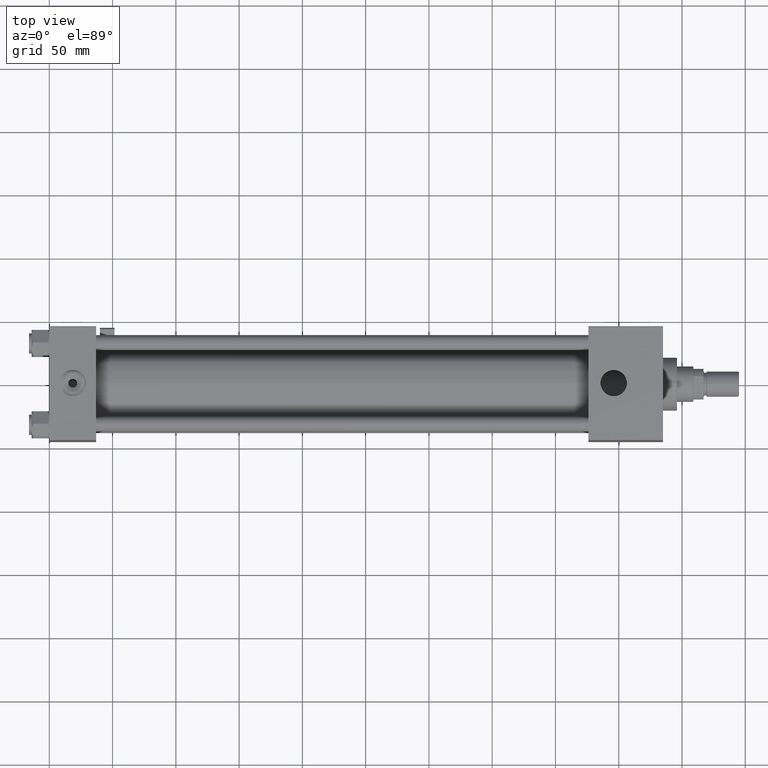
[diagram: clean part render]
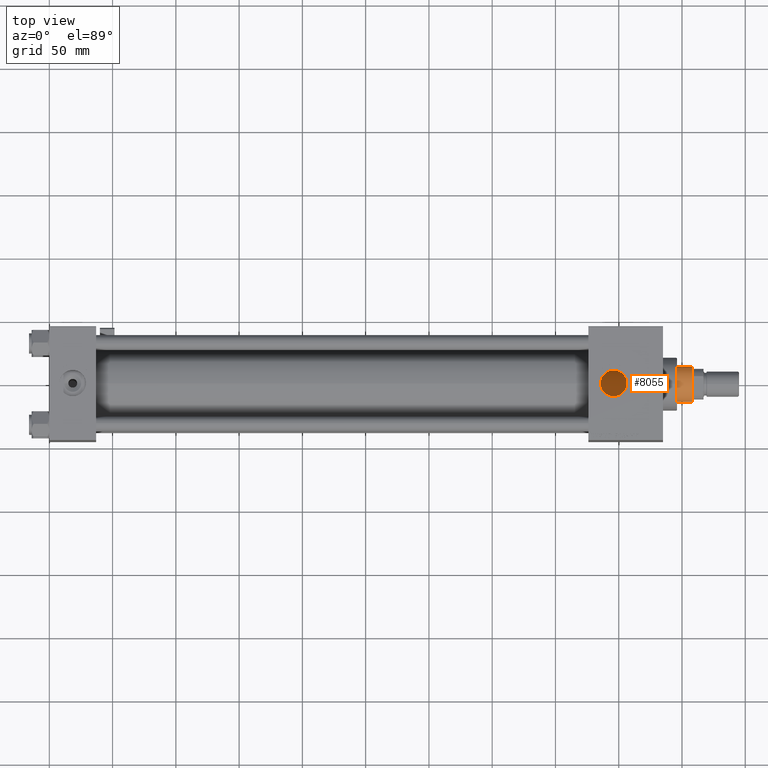
[diagram: same view with one face highlighted and labeled with its STEP entity id]
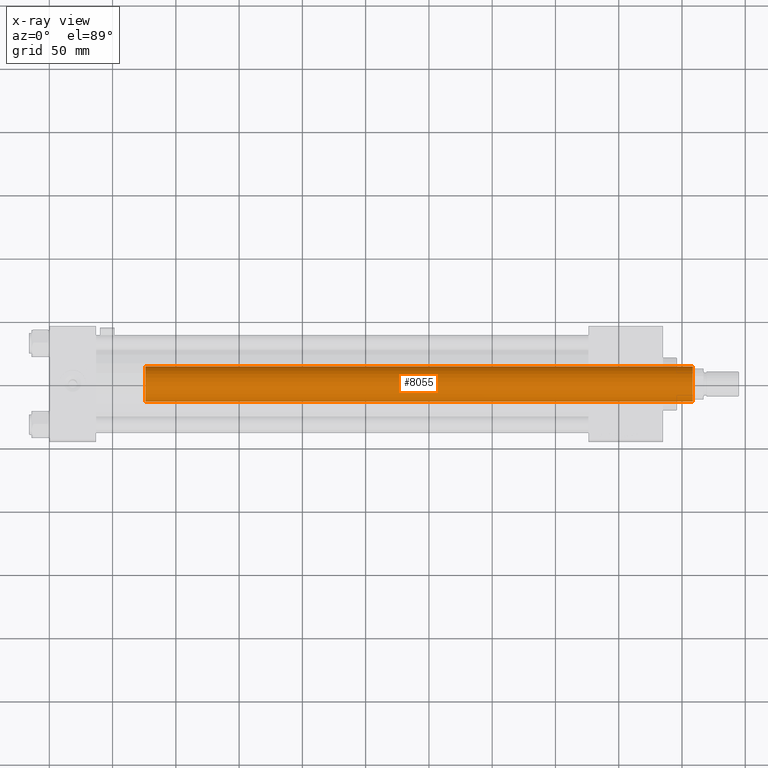
[diagram: x-ray of the same camera — body ghosted, the highlighted face saturated]
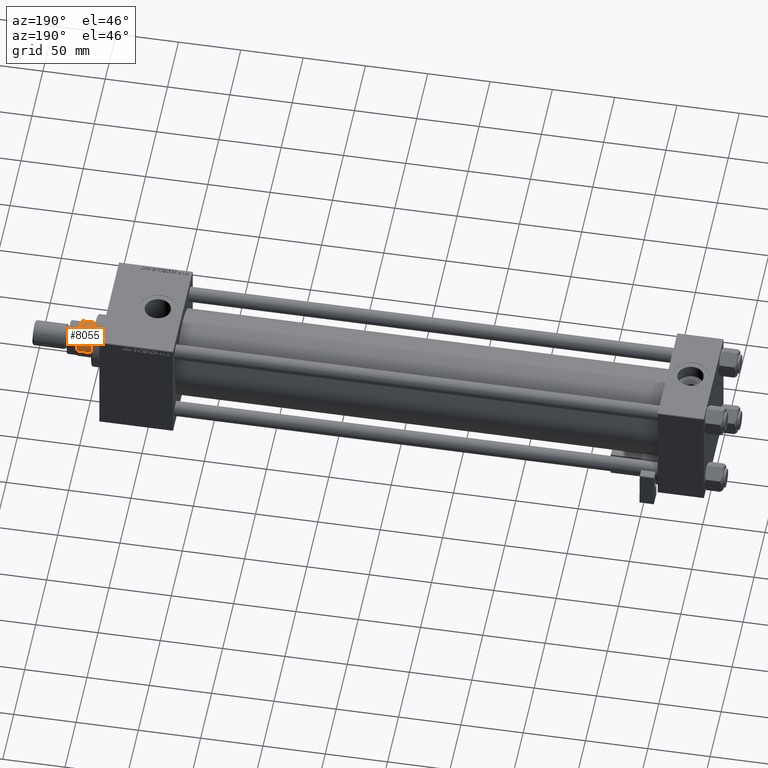
[diagram: same view with one face highlighted and labeled with its STEP entity id]
A machine part, top view. The second image highlights one B-rep face of the part: STEP entity #8055.
The next image is the same camera in x-ray: the body ghosted, the highlighted face saturated — about 0% of this face is hidden behind the body in this view.
A second angle (auxiliary view) of the same face is appended — the face is thin or edge-on in the first view.
In plain terms, the highlighted cylindrical surface (edge-blend (fillet) strip) has radius 14 mm, axis along (-1, 0, 0).
Its self-contained STEP definition (entity closure, byte-faithful):
#2707 = VERTEX_POINT ( 'NONE', #2999 ) ;
#2999 = CARTESIAN_POINT ( 'NONE',  ( 14.00000000000000178, 1.714505518806294441E-15, 471.5000000000001705 ) ) ;
#3241 = VECTOR ( 'NONE', #6051, 1000.000000000000000 ) ;
#3445 = CARTESIAN_POINT ( 'NONE',  ( 0.000000000000000000, 0.000000000000000000, 471.5000000000001705 ) ) ;
#6051 = DIRECTION ( 'NONE',  ( -0.000000000000000000, -0.000000000000000000, -1.000000000000000000 ) ) ;
#7058 = DIRECTION ( 'NONE',  ( 1.000000000000000000, 0.000000000000000000, 0.000000000000000000 ) ) ;
#7446 = DIRECTION ( 'NONE',  ( -1.000000000000000000, 0.000000000000000000, 0.000000000000000000 ) ) ;
#8055 = ADVANCED_FACE ( 'NONE', ( #49395 ), #11335, .T. ) ;
#8339 = DIRECTION ( 'NONE',  ( 1.000000000000000000, 0.000000000000000000, 0.000000000000000000 ) ) ;
#10287 = EDGE_CURVE ( 'NONE', #2707, #46262, #44090, .T. ) ;
#10792 = DIRECTION ( 'NONE',  ( -0.000000000000000000, -0.000000000000000000, -1.000000000000000000 ) ) ;
#11335 = CYLINDRICAL_SURFACE ( 'NONE', #24394, 14.00000000000000178 ) ;
#18667 = ORIENTED_EDGE ( 'NONE', *, *, #52766, .T. ) ;
#19437 = AXIS2_PLACEMENT_3D ( 'NONE', #50553, #28888, #8339 ) ;
#20258 = VERTEX_POINT ( 'NONE', #23067 ) ;
#22705 = CARTESIAN_POINT ( 'NONE',  ( 14.00000000000000178, 1.714505518806294441E-15, 472.0000000000000000 ) ) ;
#23067 = CARTESIAN_POINT ( 'NONE',  ( -14.00000000000000178, 0.000000000000000000, 471.5000000000001705 ) ) ;
#24394 = AXIS2_PLACEMENT_3D ( 'NONE', #48842, #10792, #7446 ) ;
#26363 = DIRECTION ( 'NONE',  ( -0.000000000000000000, -0.000000000000000000, -1.000000000000000000 ) ) ;
#28088 = VERTEX_POINT ( 'NONE', #45425 ) ;
#28625 = EDGE_CURVE ( 'NONE', #20258, #28088, #43866, .T. ) ;
#28888 = DIRECTION ( 'NONE',  ( 0.000000000000000000, 0.000000000000000000, 1.000000000000000000 ) ) ;
#32287 = VECTOR ( 'NONE', #26363, 1000.000000000000000 ) ;
#33776 = EDGE_LOOP ( 'NONE', ( #38089, #47287, #34219, #18667 ) ) ;
#34219 = ORIENTED_EDGE ( 'NONE', *, *, #28625, .T. ) ;
#35797 = CARTESIAN_POINT ( 'NONE',  ( -14.00000000000000178, 0.000000000000000000, 472.0000000000000000 ) ) ;
#36360 = CARTESIAN_POINT ( 'NONE',  ( 14.00000000000000178, 1.714505518806294441E-15, 39.00000000000000000 ) ) ;
#38089 = ORIENTED_EDGE ( 'NONE', *, *, #10287, .F. ) ;
#40650 = AXIS2_PLACEMENT_3D ( 'NONE', #3445, #54260, #7058 ) ;
#43866 = LINE ( 'NONE', #35797, #32287 ) ;
#44090 = LINE ( 'NONE', #22705, #3241 ) ;
#44928 = EDGE_CURVE ( 'NONE', #2707, #20258, #51304, .T. ) ;
#45425 = CARTESIAN_POINT ( 'NONE',  ( -14.00000000000000178, 0.000000000000000000, 39.00000000000000000 ) ) ;
#46262 = VERTEX_POINT ( 'NONE', #36360 ) ;
#47287 = ORIENTED_EDGE ( 'NONE', *, *, #44928, .T. ) ;
#47825 = CIRCLE ( 'NONE', #19437, 14.00000000000000178 ) ;
#48842 = CARTESIAN_POINT ( 'NONE',  ( 0.000000000000000000, 0.000000000000000000, 472.0000000000000000 ) ) ;
#49395 = FACE_OUTER_BOUND ( 'NONE', #33776, .T. ) ;
#50553 = CARTESIAN_POINT ( 'NONE',  ( 0.000000000000000000, 0.000000000000000000, 39.00000000000000000 ) ) ;
#51304 = CIRCLE ( 'NONE', #40650, 14.00000000000000178 ) ;
#52766 = EDGE_CURVE ( 'NONE', #28088, #46262, #47825, .T. ) ;
#54260 = DIRECTION ( 'NONE',  ( 0.000000000000000000, 0.000000000000000000, -1.000000000000000000 ) ) ;